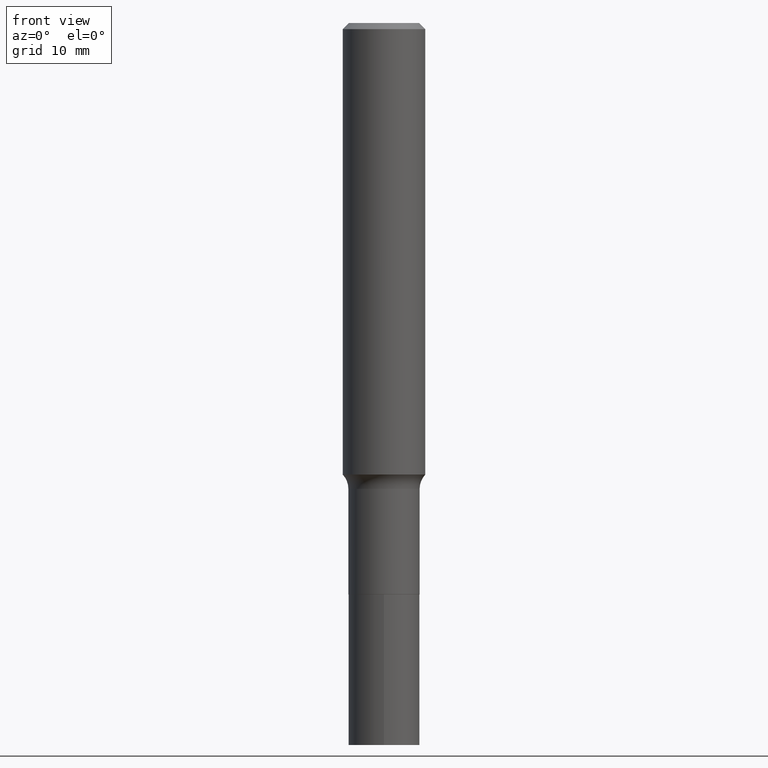
[diagram: clean part render]
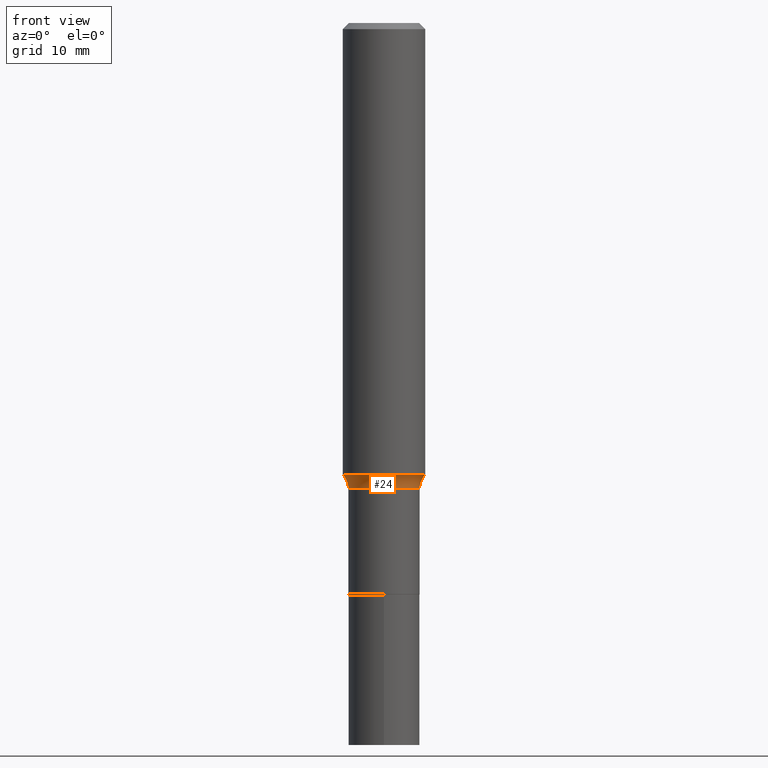
[diagram: same view with one face highlighted and labeled with its STEP entity id]
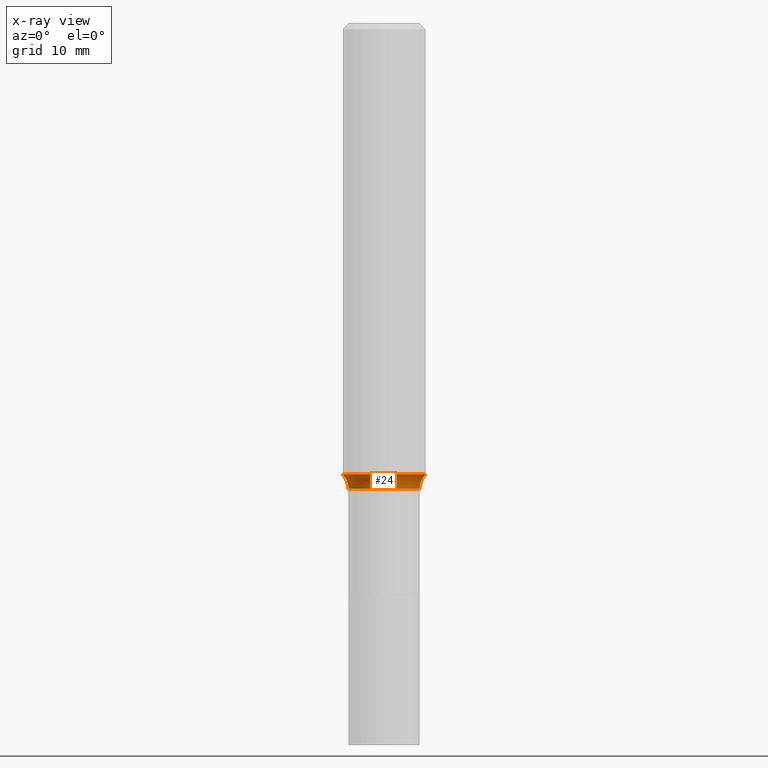
[diagram: x-ray of the same camera — body ghosted, the highlighted face saturated]
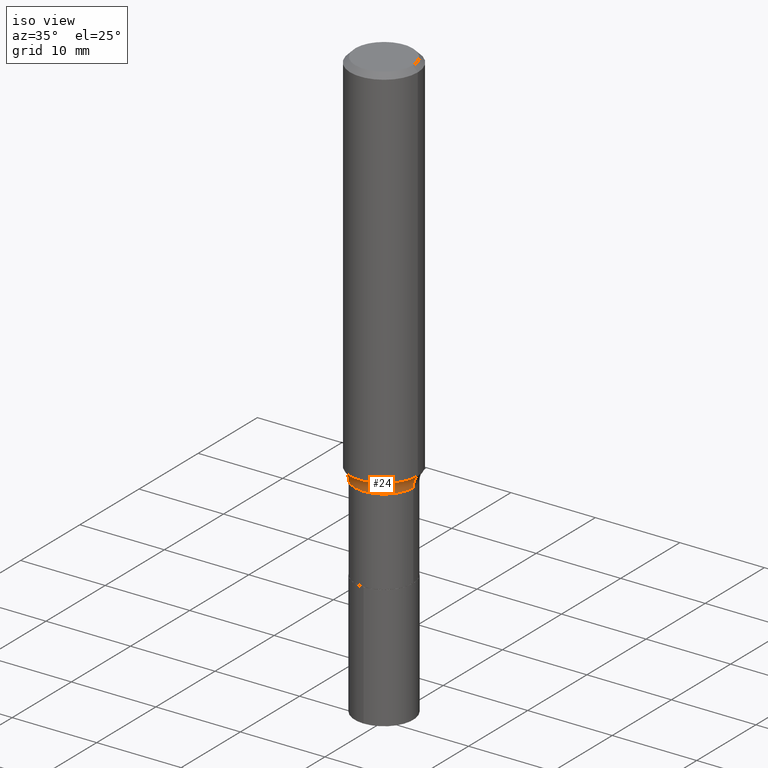
[diagram: same view with one face highlighted and labeled with its STEP entity id]
A machine part, front view. The second image highlights one B-rep face of the part: STEP entity #24.
The next image is the same camera in x-ray: the body ghosted, the highlighted face saturated — about 0% of this face is hidden behind the body in this view.
A second angle (iso view) of the same face is appended — the face is thin or edge-on in the first view.
In plain terms, the highlighted toroidal blend (fillet) surface has major radius 5.4864 mm and minor (blend) radius 2.032 mm.
Its self-contained STEP definition (entity closure, byte-faithful):
#10 = CARTESIAN_POINT ( 'NONE',  ( -0.1575000000000002232, -4.898572338728670003E-15, -1.723531236041119241 ) ) ;
#14 = VERTEX_POINT ( 'NONE', #10 ) ;
#16 = DIRECTION ( 'NONE',  ( 1.000000000000000000, -6.982962677686262766E-15, 0.000000000000000000 ) ) ;
#17 = CARTESIAN_POINT ( 'NONE',  ( 4.348288084277790698E-29, -6.208202968596996327E-15, -1.778099999999999792 ) ) ;
#24 = ADVANCED_FACE ( 'NONE', ( #440 ), #420, .F. ) ;
#27 = DIRECTION ( 'NONE',  ( 1.000000000000000000, -6.982962677686265133E-15, 0.000000000000000000 ) ) ;
#40 = ORIENTED_EDGE ( 'NONE', *, *, #201, .F. ) ;
#48 = CARTESIAN_POINT ( 'NONE',  ( 0.1575000000000002232, -7.117493769286417454E-15, -1.723531236041119241 ) ) ;
#60 = CARTESIAN_POINT ( 'NONE',  ( 0.2159999999999999698, -7.716522906977230631E-15, -1.778099999999999792 ) ) ;
#76 = AXIS2_PLACEMENT_3D ( 'NONE', #212, #283, #27 ) ;
#89 = AXIS2_PLACEMENT_3D ( 'NONE', #17, #365, #263 ) ;
#122 = CARTESIAN_POINT ( 'NONE',  ( -0.2159999999999999698, -4.673430659355180140E-15, -1.778099999999999792 ) ) ;
#125 = CARTESIAN_POINT ( 'NONE',  ( 4.348288084277790698E-29, -6.208202968596996327E-15, -1.778099999999999792 ) ) ;
#127 = DIRECTION ( 'NONE',  ( -6.982962677686266711E-15, -1.000000000000000000, 3.491481338843145583E-15 ) ) ;
#152 = AXIS2_PLACEMENT_3D ( 'NONE', #60, #127, #16 ) ;
#165 = CARTESIAN_POINT ( 'NONE',  ( 0.1359999999999999820, -7.157885892762328978E-15, -1.778099999999999792 ) ) ;
#191 = EDGE_CURVE ( 'NONE', #14, #443, #251, .T. ) ;
#195 = DIRECTION ( 'NONE',  ( 7.105427357601001859E-15, 1.000000000000000000, -3.491481338843145583E-15 ) ) ;
#197 = AXIS2_PLACEMENT_3D ( 'NONE', #125, #269, #410 ) ;
#201 = EDGE_CURVE ( 'NONE', #392, #254, #358, .T. ) ;
#212 = CARTESIAN_POINT ( 'NONE',  ( 4.214841874224268798E-29, -6.017677147550829184E-15, -1.723531236041119241 ) ) ;
#251 = CIRCLE ( 'NONE', #345, 0.07999999999999996003 ) ;
#254 = VERTEX_POINT ( 'NONE', #165 ) ;
#257 = ORIENTED_EDGE ( 'NONE', *, *, #426, .F. ) ;
#263 = DIRECTION ( 'NONE',  ( 1.000000000000000000, -6.982962677686265922E-15, 4.883557194083112340E-29 ) ) ;
#269 = DIRECTION ( 'NONE',  ( -2.445468806185136597E-29, 3.491481338843145583E-15, 1.000000000000000000 ) ) ;
#282 = CIRCLE ( 'NONE', #76, 0.1575000000000002232 ) ;
#283 = DIRECTION ( 'NONE',  ( -2.445468806185136597E-29, 3.491481338843145583E-15, 1.000000000000000000 ) ) ;
#316 = CARTESIAN_POINT ( 'NONE',  ( -0.1359999999999999820, -5.944176319271559684E-15, -1.778099999999999792 ) ) ;
#331 = ORIENTED_EDGE ( 'NONE', *, *, #396, .T. ) ;
#332 = DIRECTION ( 'NONE',  ( -1.000000000000000000, 7.105427357601001859E-15, 0.000000000000000000 ) ) ;
#345 = AXIS2_PLACEMENT_3D ( 'NONE', #122, #195, #332 ) ;
#349 = EDGE_LOOP ( 'NONE', ( #257, #448, #331, #40 ) ) ;
#358 = CIRCLE ( 'NONE', #152, 0.07999999999999996003 ) ;
#365 = DIRECTION ( 'NONE',  ( -2.445468806185136597E-29, 3.491481338843145583E-15, 1.000000000000000000 ) ) ;
#392 = VERTEX_POINT ( 'NONE', #48 ) ;
#396 = EDGE_CURVE ( 'NONE', #443, #254, #449, .T. ) ;
#410 = DIRECTION ( 'NONE',  ( 1.000000000000000000, -6.982962677686269077E-15, 0.000000000000000000 ) ) ;
#420 = TOROIDAL_SURFACE ( 'NONE', #89, 0.2159999999999999698, 0.07999999999999996003 ) ;
#426 = EDGE_CURVE ( 'NONE', #14, #392, #282, .T. ) ;
#440 = FACE_OUTER_BOUND ( 'NONE', #349, .T. ) ;
#443 = VERTEX_POINT ( 'NONE', #316 ) ;
#448 = ORIENTED_EDGE ( 'NONE', *, *, #191, .T. ) ;
#449 = CIRCLE ( 'NONE', #197, 0.1359999999999999820 ) ;